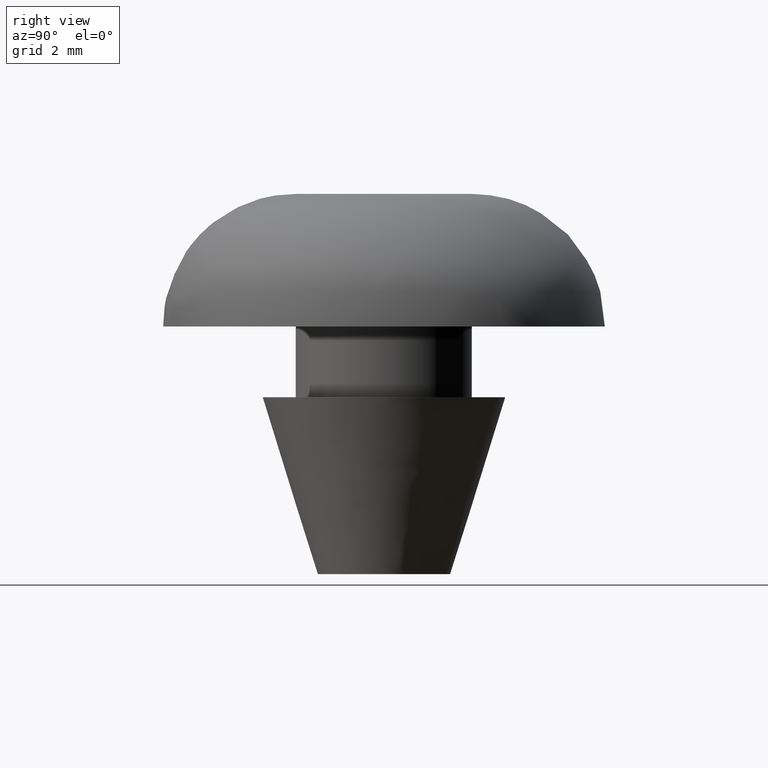
[diagram: clean part render]
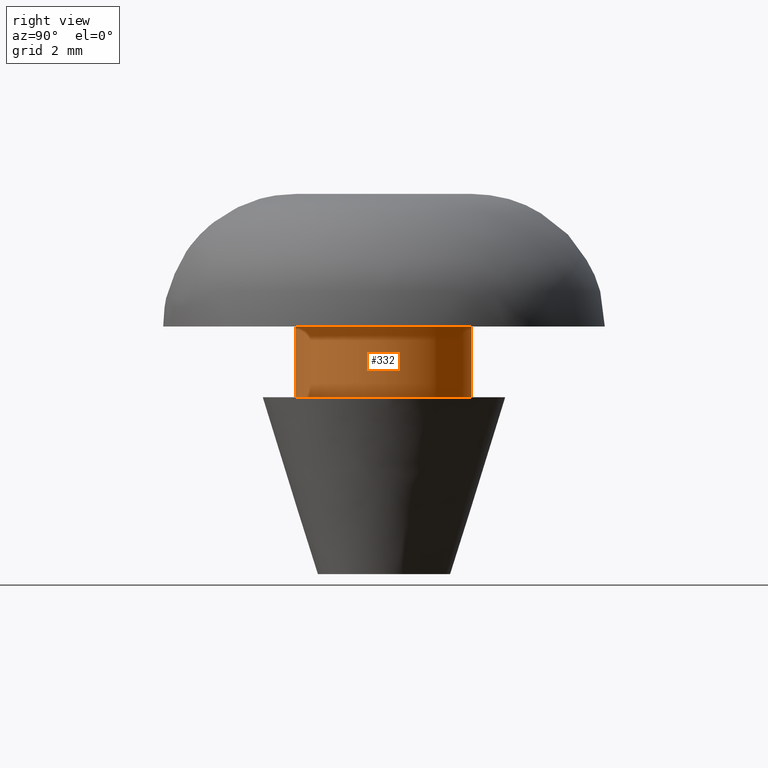
[diagram: same view with one face highlighted and labeled with its STEP entity id]
A machine part, right view. The second image highlights one B-rep face of the part: STEP entity #332.
In plain terms, the highlighted face is a freeform B-spline surface patch.
Its self-contained STEP definition (entity closure, byte-faithful):
#230=CARTESIAN_POINT('',(-0.236068469313517,1.986019052727332,5.640000000000002));
#231=CARTESIAN_POINT('',(-0.179229457275955,1.992775230897211,5.640000000000001));
#232=CARTESIAN_POINT('',(-0.122097079069714,1.996269596843733,5.640000000000001));
#233=CARTESIAN_POINT('',(1.874172517774020,2.118366675913447,5.640000000000001));
#234=CARTESIAN_POINT('',(1.996269596843733,0.122097079069714,5.640000000000001));
#235=CARTESIAN_POINT('',(2.118366675913447,-1.874172517774020,5.640000000000001));
#236=CARTESIAN_POINT('',(0.122097079069714,-1.996269596843733,5.640000000000001));
#237=CARTESIAN_POINT('',(-0.236068469313517,1.986019052727332,3.959000000000000));
#238=CARTESIAN_POINT('',(-0.179229457275955,1.992775230897211,3.959000000000001));
#239=CARTESIAN_POINT('',(-0.122097079069714,1.996269596843733,3.959000000000000));
#240=CARTESIAN_POINT('',(1.874172517774020,2.118366675913447,3.959000000000000));
#241=CARTESIAN_POINT('',(1.996269596843733,0.122097079069714,3.959000000000000));
#242=CARTESIAN_POINT('',(2.118366675913447,-1.874172517774020,3.959000000000000));
#243=CARTESIAN_POINT('',(0.122097079069714,-1.996269596843733,3.959000000000000));
#251=(BOUNDED_SURFACE()B_SPLINE_SURFACE(2,1,((#230,#237),(#231,#238),(#232,#239),(#233,#240),(#234,#241),(#235,#242),(#236,#243)),.UNSPECIFIED.,.F.,.F.,.U.)B_SPLINE_SURFACE_WITH_KNOTS((3,2,2,3),(2,2),(0.0,0.132548339959391,3.446256838944149,6.759965337928908),(0.0,1.0),.UNSPECIFIED.)GEOMETRIC_REPRESENTATION_ITEM()RATIONAL_B_SPLINE_SURFACE(((0.977505800795127,0.977505800795127),(0.988284271247462,0.988284271247462),(1.0,1.0),(0.707106781186548,0.707106781186548),(1.0,1.0),(0.707106781186548,0.707106781186548),(1.0,1.0)))REPRESENTATION_ITEM('')SURFACE());
#252=CARTESIAN_POINT('',(-0.236064975085184,1.986019468063102,5.599999999999999));
#253=VERTEX_POINT('',#252);
#254=CARTESIAN_POINT('',(2.0,0.0,5.600000000000000));
#255=VERTEX_POINT('',#254);
#256=CARTESIAN_POINT('',(-0.236064975085184,1.986019468063103,5.599999999999999));
#257=CARTESIAN_POINT('',(-0.118446473719847,2.0,5.600000000000000));
#258=CARTESIAN_POINT('',(0.0,2.0,5.600000000000000));
#259=CARTESIAN_POINT('',(2.000000000000000,2.000000000000000,5.600000000000000));
#260=CARTESIAN_POINT('',(2.0,0.0,5.600000000000000));
#268=(BOUNDED_CURVE()B_SPLINE_CURVE(2,(#256,#257,#258,#259,#260),.UNSPECIFIED.,.F.,.U.)B_SPLINE_CURVE_WITH_KNOTS((3,2,3),(0.229562770862239,0.250000000000000,0.500000000000000),.UNSPECIFIED.)CURVE()GEOMETRIC_REPRESENTATION_ITEM()RATIONAL_B_SPLINE_CURVE((0.956027337000208,0.976056296696852,1.0,0.707106781186548,1.0))REPRESENTATION_ITEM(''));
#269=EDGE_CURVE('',#253,#255,#268,.T.);
#270=ORIENTED_EDGE('',*,*,#269,.T.);
#271=CARTESIAN_POINT('',(0.122096446461035,-1.996269635535537,5.599999999999997));
#272=VERTEX_POINT('',#271);
#273=CARTESIAN_POINT('',(2.0,0.0,5.600000000000000));
#274=CARTESIAN_POINT('',(2.0,-1.881413328461733,5.600000000000000));
#275=CARTESIAN_POINT('',(0.122096446461035,-1.996269635535536,5.599999999999998));
#283=(BOUNDED_CURVE()B_SPLINE_CURVE(2,(#273,#274,#275),.UNSPECIFIED.,.F.,.U.)B_SPLINE_CURVE_WITH_KNOTS((3,3),(0.500000000000000,0.739333071600552),.UNSPECIFIED.)CURVE()GEOMETRIC_REPRESENTATION_ITEM()RATIONAL_B_SPLINE_CURVE((1.0,0.719603865161616,0.976072276049575))REPRESENTATION_ITEM(''));
#284=EDGE_CURVE('',#255,#272,#283,.T.);
#285=ORIENTED_EDGE('',*,*,#284,.T.);
#286=CARTESIAN_POINT('',(0.122096454071438,-1.996269635070069,4.0));
#287=VERTEX_POINT('',#286);
#288=CARTESIAN_POINT('',(0.122096446461035,-1.996269635535537,5.599999999999997));
#289=CARTESIAN_POINT('',(0.122096454071438,-1.996269635070069,4.0));
#290=QUASI_UNIFORM_CURVE('',1,(#288,#289),.UNSPECIFIED.,.F.,.U.);
#291=EDGE_CURVE('',#272,#287,#290,.T.);
#292=ORIENTED_EDGE('',*,*,#291,.T.);
#293=CARTESIAN_POINT('',(2.0,0.0,4.0));
#294=VERTEX_POINT('',#293);
#295=CARTESIAN_POINT('',(2.0,0.0,4.0));
#296=CARTESIAN_POINT('',(2.0,-1.881413314089851,4.0));
#297=CARTESIAN_POINT('',(0.122096454071438,-1.996269635070070,4.000000000000000));
#305=(BOUNDED_CURVE()B_SPLINE_CURVE(2,(#295,#296,#297),.UNSPECIFIED.,.F.,.U.)B_SPLINE_CURVE_WITH_KNOTS((3,3),(0.500000000000000,0.739333070284946),.UNSPECIFIED.)CURVE()GEOMETRIC_REPRESENTATION_ITEM()RATIONAL_B_SPLINE_CURVE((1.0,0.719603866702944,0.976072273229979))REPRESENTATION_ITEM(''));
#306=EDGE_CURVE('',#294,#287,#305,.T.);
#307=ORIENTED_EDGE('',*,*,#306,.F.);
#308=CARTESIAN_POINT('',(-0.236065017184175,1.986019463059148,4.0));
#309=VERTEX_POINT('',#308);
#310=CARTESIAN_POINT('',(-0.236065017184175,1.986019463059149,4.000000000000000));
#311=CARTESIAN_POINT('',(-0.118446494991864,2.0,4.0));
#312=CARTESIAN_POINT('',(0.0,2.0,4.0));
#313=CARTESIAN_POINT('',(2.000000000000000,2.000000000000000,4.000000000000000));
#314=CARTESIAN_POINT('',(2.0,0.0,4.0));
#322=(BOUNDED_CURVE()B_SPLINE_CURVE(2,(#310,#311,#312,#313,#314),.UNSPECIFIED.,.F.,.U.)B_SPLINE_CURVE_WITH_KNOTS((3,2,3),(0.229562767279762,0.250000000000000,0.500000000000000),.UNSPECIFIED.)CURVE()GEOMETRIC_REPRESENTATION_ITEM()RATIONAL_B_SPLINE_CURVE((0.956027329978387,0.976056292499719,1.0,0.707106781186548,1.0))REPRESENTATION_ITEM(''));
#323=EDGE_CURVE('',#309,#294,#322,.T.);
#324=ORIENTED_EDGE('',*,*,#323,.F.);
#325=CARTESIAN_POINT('',(-0.236064975085184,1.986019468063102,5.599999999999999));
#326=CARTESIAN_POINT('',(-0.236065017184175,1.986019463059148,4.0));
#327=QUASI_UNIFORM_CURVE('',1,(#325,#326),.UNSPECIFIED.,.F.,.U.);
#328=EDGE_CURVE('',#253,#309,#327,.T.);
#329=ORIENTED_EDGE('',*,*,#328,.F.);
#330=EDGE_LOOP('',(#270,#285,#292,#307,#324,#329));
#331=FACE_OUTER_BOUND('',#330,.T.);
#332=ADVANCED_FACE('',(#331),#251,.T.);